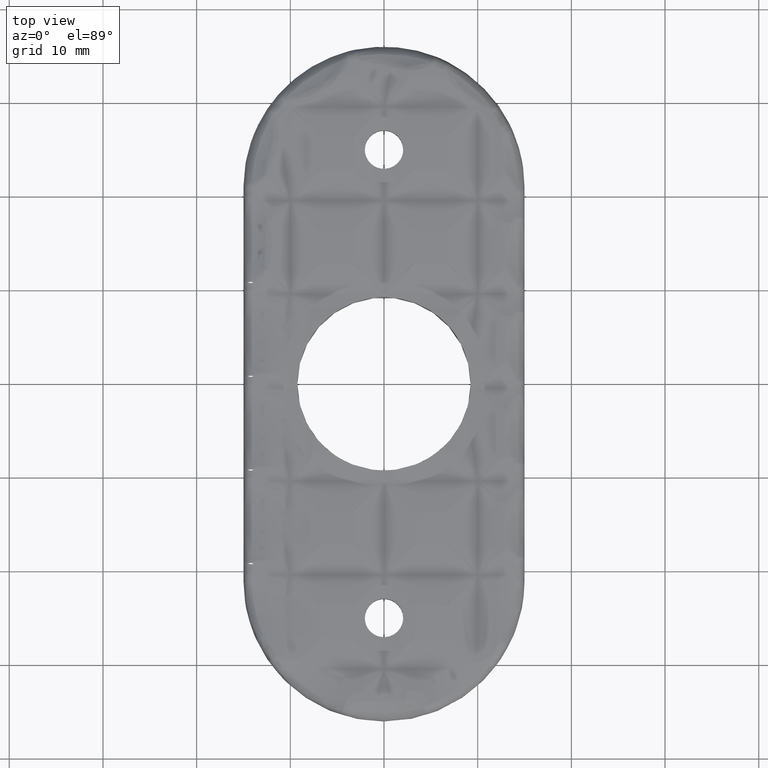
[diagram: clean part render]
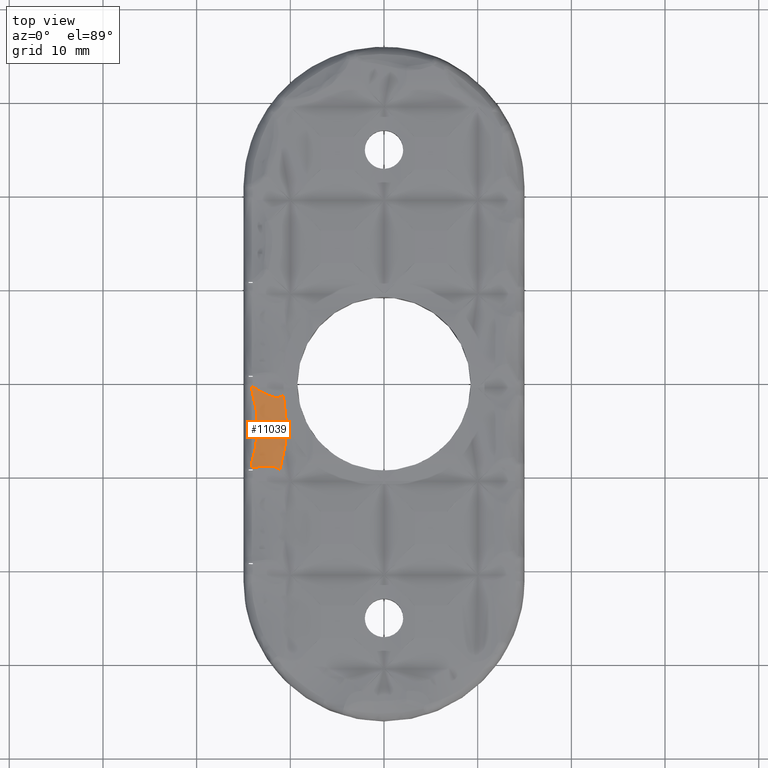
[diagram: same view with one face highlighted and labeled with its STEP entity id]
A machine part, top view. The second image highlights one B-rep face of the part: STEP entity #11039.
In plain terms, the highlighted face is a freeform B-spline surface patch.
Its self-contained STEP definition (entity closure, byte-faithful):
#81 = CARTESIAN_POINT ( 'NONE',  ( -12.66827399355456900, -0.05533071880763334300, 3.480385656055541100 ) ) ;
#731 = CARTESIAN_POINT ( 'NONE',  ( -10.43101667249169900, -4.378355373627697700, 3.258035847555504000 ) ) ;
#1396 = CARTESIAN_POINT ( 'NONE',  ( -13.59059611231253900, -5.896650930910060300, 2.920175415793777200 ) ) ;
#1519 = B_SPLINE_CURVE_WITH_KNOTS ( 'NONE', 3,
 ( #14554, #27028, #20842, #8345 ),
 .UNSPECIFIED., .F., .F.,
 ( 4, 4 ),
 ( 0.0000000000000000000, 1.000000000000000000 ),
 .UNSPECIFIED. ) ;
#1535 = CARTESIAN_POINT ( 'NONE',  ( -11.84715504734033000, -11.04130083126988600, 3.398498752361853300 ) ) ;
#1723 = CARTESIAN_POINT ( 'NONE',  ( -13.04417683816769900, -9.909699897632089400, 3.592215643987439800 ) ) ;
#1734 = ORIENTED_EDGE ( 'NONE', *, *, #20210, .T. ) ;
#1742 = CARTESIAN_POINT ( 'NONE',  ( -11.14219500480416200, -1.412535005345283000, 3.290629829669987800 ) ) ;
#1800 = CARTESIAN_POINT ( 'NONE',  ( -13.88835697449567000, -7.589348808173491000, 3.054811542851195000 ) ) ;
#1833 = CARTESIAN_POINT ( 'NONE',  ( -12.42451285788366600, -1.203407385963064500, 3.267288569751256600 ) ) ;
#1842 = CARTESIAN_POINT ( 'NONE',  ( -13.80899501552927700, -8.918216513446994400, 3.297871665484650300 ) ) ;
#1897 = CARTESIAN_POINT ( 'NONE',  ( -10.51177364146502700, -6.141939044428357700, 3.261284029204140700 ) ) ;
#1922 = CARTESIAN_POINT ( 'NONE',  ( -13.28110449622653500, -0.7277802490535093500, 3.238573562045265100 ) ) ;
#1926 = CARTESIAN_POINT ( 'NONE',  ( -14.12127477382749800, -0.5488267976551071100, 3.171531770050946400 ) ) ;
#1935 = CARTESIAN_POINT ( 'NONE',  ( -12.61137007613703900, -8.773258131688875100, 3.338528992399070200 ) ) ;
#1982 = CARTESIAN_POINT ( 'NONE',  ( -12.00361099591897400, -4.396631761069095000, 3.316698269205067700 ) ) ;
#2009 = CARTESIAN_POINT ( 'NONE',  ( -14.09532383487331600, -0.2868833321879890600, 3.228351946618104800 ) ) ;
#2019 = CARTESIAN_POINT ( 'NONE',  ( -11.57301335210137900, -8.895841951451112500, 3.333647135796540300 ) ) ;
#2070 = CARTESIAN_POINT ( 'NONE',  ( -13.59088600944895700, -3.060660011852244500, 2.920298929563507800 ) ) ;
#2158 = CARTESIAN_POINT ( 'NONE',  ( -11.50763481050356600, 1.344154061053188100, 3.346812893981491800 ) ) ;
#2834 = CARTESIAN_POINT ( 'NONE',  ( -10.45949719331293600, -3.494828433924103400, 3.259127644572992200 ) ) ;
#3396 = ORIENTED_EDGE ( 'NONE', *, *, #18174, .T. ) ;
#3484 = CARTESIAN_POINT ( 'NONE',  ( -13.73847089290606900, -6.903818449172896400, 2.984865109730826700 ) ) ;
#3812 = CARTESIAN_POINT ( 'NONE',  ( -11.63319821652868300, -10.60817913082667700, 3.363873608087538900 ) ) ;
#3836 = CARTESIAN_POINT ( 'NONE',  ( -11.30670225595533100, -1.446097184525246600, 3.293052254644865100 ) ) ;
#3898 = CARTESIAN_POINT ( 'NONE',  ( -12.39944851465289200, -7.924772219179193800, 3.409473423953571100 ) ) ;
#3931 = CARTESIAN_POINT ( 'NONE',  ( -12.47089807838952400, -1.181496734003115500, 3.265487877662298200 ) ) ;
#3943 = CARTESIAN_POINT ( 'NONE',  ( -13.55641455563737300, -8.880818818913171600, 3.308071820120684700 ) ) ;
#3989 = CARTESIAN_POINT ( 'NONE',  ( -14.12127477382749800, -0.5488267976551071100, 3.171531770050946400 ) ) ;
#3993 = CARTESIAN_POINT ( 'NONE',  ( -13.56409166697579100, -5.585167202638981400, 2.909016898504428900 ) ) ;
#4021 = CARTESIAN_POINT ( 'NONE',  ( -13.40815032469858400, -0.6519234106084197400, 3.235819419604557500 ) ) ;
#4026 = CARTESIAN_POINT ( 'NONE',  ( -12.56687686355376800, -8.771279461338418000, 3.339422368149583200 ) ) ;
#4070 = CARTESIAN_POINT ( 'NONE',  ( -10.43549560113942600, -4.081348092560012300, 3.258198029076178500 ) ) ;
#4112 = CARTESIAN_POINT ( 'NONE',  ( -11.48501458073668500, -8.931403818695208900, 3.329789430576193700 ) ) ;
#4170 = CARTESIAN_POINT ( 'NONE',  ( -12.16341554512530900, -2.241416818851386300, 3.352130903124080700 ) ) ;
#4258 = CARTESIAN_POINT ( 'NONE',  ( -14.09643494446208600, -0.6138798751951002300, 3.157733382538572700 ) ) ;
#4827 = CARTESIAN_POINT ( 'NONE',  ( -11.05808497606055200, -8.992679846532704200, 3.298484344969830700 ) ) ;
#4917 = CARTESIAN_POINT ( 'NONE',  ( -10.55927620057999100, -2.340376856638983300, 3.263409684702112100 ) ) ;
#5407 = EDGE_CURVE ( 'NONE', #8440, #19481, #25000, .T. ) ;
#5474 = CARTESIAN_POINT ( 'NONE',  ( -14.12127477382749800, -0.5488267976551071100, 3.171531770050946400 ) ) ;
#5571 = CARTESIAN_POINT ( 'NONE',  ( -13.95155498063090600, -7.849648285385117500, 3.085107339596460100 ) ) ;
#5602 = FACE_OUTER_BOUND ( 'NONE', #8355, .T. ) ;
#5883 = CARTESIAN_POINT ( 'NONE',  ( -14.15920025275746100, -8.551054568405902500, 3.190510178194099200 ) ) ;
#5913 = CARTESIAN_POINT ( 'NONE',  ( -11.47875417532672600, -1.453633938217158400, 3.292996085648730400 ) ) ;
#5970 = CARTESIAN_POINT ( 'NONE',  ( -10.88957950123150600, -8.372775747831191500, 3.284107355439180000 ) ) ;
#5995 = CARTESIAN_POINT ( 'NONE',  ( -12.61153442497656300, -1.113544706974408000, 3.260026275772789800 ) ) ;
#6006 = CARTESIAN_POINT ( 'NONE',  ( -13.41705148409592100, -8.860377171889146200, 3.313482667464561000 ) ) ;
#6060 = CARTESIAN_POINT ( 'NONE',  ( -12.04529104365839100, -5.617458126710706900, 3.325786844333916000 ) ) ;
#6090 = CARTESIAN_POINT ( 'NONE',  ( -13.55873020743759500, -0.5641866787590681400, 3.233285244806615800 ) ) ;
#6103 = CARTESIAN_POINT ( 'NONE',  ( -12.28558990708532800, -8.767175007124809100, 3.343680191215864500 ) ) ;
#6154 = CARTESIAN_POINT ( 'NONE',  ( -13.52082440927189900, -4.216788736179052100, 2.891016134130342000 ) ) ;
#6188 = CARTESIAN_POINT ( 'NONE',  ( -11.30995609188722600, -9.016152217208427200, 3.320467434079125800 ) ) ;
#6239 = CARTESIAN_POINT ( 'NONE',  ( -10.86493635287226500, -0.6647835017488817900, 3.281854033910026400 ) ) ;
#6317 = CARTESIAN_POINT ( 'NONE',  ( -12.94929926430793500, 0.7096654270318758500, 3.562907734668149500 ) ) ;
#6911 = CARTESIAN_POINT ( 'NONE',  ( -10.88958192267905300, -8.372774635969220100, 3.284107542422229000 ) ) ;
#6991 = CARTESIAN_POINT ( 'NONE',  ( -10.75434718435976400, -1.214862926047708600, 3.274633317936659300 ) ) ;
#7581 = CARTESIAN_POINT ( 'NONE',  ( -13.95077716263696700, -1.122384044473983400, 3.084740003237362400 ) ) ;
#7676 = CARTESIAN_POINT ( 'NONE',  ( -14.12127809581429400, -8.420231718024595600, 3.171527060845540800 ) ) ;
#7988 = CARTESIAN_POINT ( 'NONE',  ( -12.75344707017536900, -9.170154580391006500, 3.504347110889078900 ) ) ;
#8016 = CARTESIAN_POINT ( 'NONE',  ( -11.57709720883687700, -1.448604999658230600, 3.292063763919462100 ) ) ;
#8077 = CARTESIAN_POINT ( 'NONE',  ( -13.77290830986896400, -7.066600916766971900, 3.000712335627233600 ) ) ;
#8105 = CARTESIAN_POINT ( 'NONE',  ( -12.93930932063609300, -0.9300376311804768900, 3.248263228968507400 ) ) ;
#8120 = CARTESIAN_POINT ( 'NONE',  ( -13.34066960517365000, -8.849477384347414600, 3.316357956337535400 ) ) ;
#8173 = CARTESIAN_POINT ( 'NONE',  ( -10.44875268274131800, -5.268240942267358800, 3.258696660578339600 ) ) ;
#8200 = CARTESIAN_POINT ( 'NONE',  ( -13.65298004308683000, -0.5110072874955390300, 3.232020801832207200 ) ) ;
#8202 = CARTESIAN_POINT ( 'NONE',  ( -14.10407492220520500, -0.3744394639063676800, 3.209389299120573500 ) ) ;
#8207 = CARTESIAN_POINT ( 'NONE',  ( -12.00125349685922400, -8.791519911249814400, 3.343542085018285100 ) ) ;
#8261 = CARTESIAN_POINT ( 'NONE',  ( -12.02527892522794200, -3.665183525772949500, 3.321404032281541700 ) ) ;
#8297 = CARTESIAN_POINT ( 'NONE',  ( -11.11274259044614300, -9.174216309621622000, 3.303668035484686300 ) ) ;
#8344 = CARTESIAN_POINT ( 'NONE',  ( -13.75983921469394700, -1.947947649060365800, 2.994496792763678500 ) ) ;
#8345 = CARTESIAN_POINT ( 'NONE',  ( -14.12127809581429400, -8.420231718024595600, 3.171527060845540800 ) ) ;
#8355 = EDGE_LOOP ( 'NONE', ( #1734, #13116, #12721, #23629, #3396, #10002 ) ) ;
#8440 = VERTEX_POINT ( 'NONE', #3989 ) ;
#9007 = CARTESIAN_POINT ( 'NONE',  ( -10.61100226224403200, -6.998561347586226100, 3.265965102536647600 ) ) ;
#9098 = CARTESIAN_POINT ( 'NONE',  ( -10.75634458533844800, -1.204953935938295000, 3.274764121688000800 ) ) ;
#9684 = CARTESIAN_POINT ( 'NONE',  ( -13.73875001065879600, -2.063289373852955000, 2.985000787570477200 ) ) ;
#9779 = EDGE_CURVE ( 'NONE', #20045, #12057, #1519, .T. ) ;
#9923 = B_SPLINE_CURVE_WITH_KNOTS ( 'NONE', 3,
 ( #12206, #10144, #1842, #16398, #3943, #18523, #6006, #20603, #8120, #22727, #10218, #24838, #12303, #26889, #14416, #1935, #16488, #4026, #18611, #6103, #20690, #8207, #22818, #10306, #24920, #12398, #26975, #14498, #2019, #16583, #4112, #18703, #6188, #20786, #8297 ),
 .UNSPECIFIED., .F., .F.,
 ( 4, 2, 2, 1, 2, 2, 2, 1, 1, 2, 2, 2, 1, 1, 2, 2, 2, 2, 2, 4 ),
 ( 0.0000000000000000000, 0.1250000000000021400, 0.1875000000000039400, 0.2187500000000048300, 0.2343750000000043900, 0.2500000000000039400, 0.3750000000000030000, 0.4375000000000025500, 0.4687500000000022800, 0.4843750000000021600, 0.5000000000000020000, 0.6249999999999992200, 0.6874999999999986700, 0.7187499999999984500, 0.7343749999999990000, 0.7499999999999995600, 0.8125000000000003300, 0.8437500000000004400, 0.8750000000000005600, 1.000000000000000000 ),
 .UNSPECIFIED. ) ;
#10002 = ORIENTED_EDGE ( 'NONE', *, *, #9779, .F. ) ;
#10020 = B_SPLINE_CURVE_WITH_KNOTS ( 'NONE', 3,
 ( #5474, #17980, #7581, #22200, #9684, #24282, #11767, #26376, #13887, #1396, #15956, #3484, #18068, #5571, #20166, #7676 ),
 .UNSPECIFIED., .F., .F.,
 ( 4, 2, 2, 2, 2, 2, 2, 4 ),
 ( 0.0000000000000000000, 0.1250000000000000600, 0.2500000000000001100, 0.5000000000000002200, 0.6250000000000001100, 0.7500000000000001100, 0.8750000000000000000, 1.000000000000000000 ),
 .UNSPECIFIED. ) ;
#10029 = CARTESIAN_POINT ( 'NONE',  ( -10.87466178414941000, -1.300234999442522400, 3.281766979996168800 ) ) ;
#10103 = CARTESIAN_POINT ( 'NONE',  ( -11.18535962916516400, -9.412007665981164500, 3.310601348441304800 ) ) ;
#10132 = CARTESIAN_POINT ( 'NONE',  ( -11.75885214012542900, -1.431075084083456500, 3.289535029025109700 ) ) ;
#10144 = CARTESIAN_POINT ( 'NONE',  ( -13.93785040815249900, -8.936925284258045100, 3.292477184045518700 ) ) ;
#10185 = CARTESIAN_POINT ( 'NONE',  ( -12.21141655934000900, -7.027257542981720600, 3.363269689454102500 ) ) ;
#10210 = CARTESIAN_POINT ( 'NONE',  ( -13.11127211200880500, -0.8289352730284235100, 3.242980746463037800 ) ) ;
#10218 = CARTESIAN_POINT ( 'NONE',  ( -13.17969700706216200, -8.827012380989476300, 3.322305020063162800 ) ) ;
#10264 = CARTESIAN_POINT ( 'NONE',  ( -13.52837188819665200, -5.004969726717396500, 2.894130872656178100 ) ) ;
#10296 = CARTESIAN_POINT ( 'NONE',  ( -13.67599066250540200, -0.4982256367574354200, 3.231742667671473300 ) ) ;
#10306 = CARTESIAN_POINT ( 'NONE',  ( -11.84920146538387800, -8.818433275550681600, 3.341421860783037300 ) ) ;
#10362 = CARTESIAN_POINT ( 'NONE',  ( -10.47898174442749700, -3.204255144193248700, 3.259894215094604900 ) ) ;
#10453 = CARTESIAN_POINT ( 'NONE',  ( -12.43275277202257300, -0.8855837819575814700, 3.417447912247262300 ) ) ;
#11039 = ADVANCED_FACE ( 'NONE', ( #5602 ), #23844, .T. ) ;
#11104 = CARTESIAN_POINT ( 'NONE',  ( -10.48583701402359800, -5.853030468706462500, 3.260196637819485300 ) ) ;
#11767 = CARTESIAN_POINT ( 'NONE',  ( -13.51958920513194300, -3.768407724915508300, 2.890499514395505900 ) ) ;
#12057 = VERTEX_POINT ( 'NONE', #17900 ) ;
#12109 = CARTESIAN_POINT ( 'NONE',  ( -11.02832938111455300, -1.376259415103315600, 3.287766738106872900 ) ) ;
#12166 = CARTESIAN_POINT ( 'NONE',  ( -13.93021022232233900, -7.756724581130456800, 3.075001816704164600 ) ) ;
#12191 = CARTESIAN_POINT ( 'NONE',  ( -12.12090973995107200, -1.328915917379144900, 3.278642080578359200 ) ) ;
#12206 = CARTESIAN_POINT ( 'NONE',  ( -14.06797781313243200, -8.953913423045323200, 3.286946360147342100 ) ) ;
#12264 = CARTESIAN_POINT ( 'NONE',  ( -10.61099972380957500, -6.998562066183930100, 3.265964968061875400 ) ) ;
#12292 = CARTESIAN_POINT ( 'NONE',  ( -13.22575820303433100, -0.7608206874550785800, 3.239904979508023300 ) ) ;
#12303 = CARTESIAN_POINT ( 'NONE',  ( -12.86033041557785200, -8.791064057185472800, 3.332418480990843300 ) ) ;
#12355 = CARTESIAN_POINT ( 'NONE',  ( -12.00864983365734200, -4.887625107805775700, 3.317789529134637300 ) ) ;
#12385 = CARTESIAN_POINT ( 'NONE',  ( -13.68396946176553200, -0.4938117967271869500, 3.231648830669748400 ) ) ;
#12398 = CARTESIAN_POINT ( 'NONE',  ( -11.80536841165155200, -8.827822273375492300, 3.340577675027801300 ) ) ;
#12447 = CARTESIAN_POINT ( 'NONE',  ( -13.54553737235524700, -3.634336841717550600, 2.901255423321316600 ) ) ;
#12504 = EDGE_CURVE ( 'NONE', #19699, #19481, #14306, .T. ) ;
#12537 = CARTESIAN_POINT ( 'NONE',  ( -11.32358848874589100, 0.8675923672175301900, 3.324873435907699500 ) ) ;
#12721 = ORIENTED_EDGE ( 'NONE', *, *, #12504, .T. ) ;
#13116 = ORIENTED_EDGE ( 'NONE', *, *, #17482, .T. ) ;
#13195 = CARTESIAN_POINT ( 'NONE',  ( -10.43763682166099500, -4.971430362437093500, 3.258284698456706000 ) ) ;
#13887 = CARTESIAN_POINT ( 'NONE',  ( -13.53436659071839000, -5.200619109172770000, 2.896544140747940900 ) ) ;
#14224 = CARTESIAN_POINT ( 'NONE',  ( -11.12157490941000600, -1.406823062454402500, 3.290186508848509400 ) ) ;
#14294 = CARTESIAN_POINT ( 'NONE',  ( -12.50850507805770600, -8.353999621489055700, 3.437634615314576700 ) ) ;
#14306 = B_SPLINE_CURVE_WITH_KNOTS ( 'NONE', 3,
 ( #26540, #18243, #10029, #24640, #12109, #26709, #14224, #1742, #16308, #3836, #18406, #5913, #20510, #8016, #22625, #10132, #24734, #12191, #26795, #14321, #1833, #16389, #3931, #18511, #5995, #20593, #8105, #22716, #10210, #24826, #12292, #26879, #14410, #1922, #16476, #4021, #18603, #6090, #20677, #8200, #22805, #10296, #24911, #12385, #26964, #14487, #2009 ),
 .UNSPECIFIED., .F., .F.,
 ( 4, 2, 1, 2, 2, 2, 1, 2, 2, 2, 1, 1, 1, 2, 2, 2, 2, 1, 1, 2, 2, 2, 1, 1, 1, 1, 2, 2, 4 ),
 ( 0.0000000000000000000, 0.06249999999999701600, 0.09374999999999489300, 0.1093749999999938200, 0.1249999999999927600, 0.1874999999999912600, 0.2187499999999905400, 0.2343749999999901700, 0.2499999999999897900, 0.3749999999999898400, 0.4374999999999892300, 0.4687499999999895600, 0.4843749999999903400, 0.4921874999999908400, 0.4999999999999912300, 0.6249999999999994400, 0.6875000000000035500, 0.7187500000000056600, 0.7343750000000061100, 0.7421875000000064400, 0.7500000000000066600, 0.8125000000000111000, 0.8437500000000132100, 0.8593750000000143200, 0.8671875000000148800, 0.8710937500000151000, 0.8730468750000153200, 0.8750000000000154300, 1.000000000000000000 ),
 .UNSPECIFIED. ) ;
#14321 = CARTESIAN_POINT ( 'NONE',  ( -12.35971819694760000, -1.233043467927925900, 3.269795460590606800 ) ) ;
#14381 = CARTESIAN_POINT ( 'NONE',  ( -13.61988823321299300, -6.154025614722777400, 2.932669570868993600 ) ) ;
#14410 = CARTESIAN_POINT ( 'NONE',  ( -13.27038992980920000, -0.7341786100628205900, 3.238824335262104000 ) ) ;
#14416 = CARTESIAN_POINT ( 'NONE',  ( -12.65750273482163000, -8.775598990082105600, 3.337555825359099800 ) ) ;
#14462 = CARTESIAN_POINT ( 'NONE',  ( -10.43101406119913900, -4.378355343279760200, 3.258035750146905900 ) ) ;
#14473 = VERTEX_POINT ( 'NONE', #26968 ) ;
#14487 = CARTESIAN_POINT ( 'NONE',  ( -13.90655710363936500, -0.3709187202887752100, 3.229431297882376500 ) ) ;
#14498 = CARTESIAN_POINT ( 'NONE',  ( -11.66338418087202900, -8.864329228222914000, 3.336994710010472400 ) ) ;
#14553 = CARTESIAN_POINT ( 'NONE',  ( -12.10098317007183900, -2.709506042962912500, 3.338127140997367200 ) ) ;
#14554 = CARTESIAN_POINT ( 'NONE',  ( -14.06797781313243200, -8.953913423045323200, 3.286946360147342100 ) ) ;
#14650 = CARTESIAN_POINT ( 'NONE',  ( -14.00240187262156000, -0.9303414426102729600, 3.110169720660315800 ) ) ;
#15215 = CARTESIAN_POINT ( 'NONE',  ( -11.11274259044614300, -9.174216309621622000, 3.303668035484686300 ) ) ;
#15303 = CARTESIAN_POINT ( 'NONE',  ( -10.43549821064363000, -4.081348207783237900, 3.258198127436098700 ) ) ;
#15810 = CARTESIAN_POINT ( 'NONE',  ( -14.09532383487331600, -0.2868833321879890600, 3.228351946618104800 ) ) ;
#15956 = CARTESIAN_POINT ( 'NONE',  ( -13.63193643699950300, -6.237239959202628200, 2.937713720204617300 ) ) ;
#16279 = CARTESIAN_POINT ( 'NONE',  ( -14.26264442294520600, -8.838690742775613200, 3.246984982129765800 ) ) ;
#16308 = CARTESIAN_POINT ( 'NONE',  ( -11.23245745339267300, -1.435146285825757800, 3.292345256789245900 ) ) ;
#16363 = CARTESIAN_POINT ( 'NONE',  ( -10.95797487738988200, -8.641073965679414200, 3.289514683075131600 ) ) ;
#16389 = CARTESIAN_POINT ( 'NONE',  ( -12.45233672926949200, -1.190312404535086800, 3.266208607664399500 ) ) ;
#16398 = CARTESIAN_POINT ( 'NONE',  ( -13.61913497025725000, -8.890165736631024300, 3.305571075768642100 ) ) ;
#16448 = CARTESIAN_POINT ( 'NONE',  ( -12.06498323260740500, -5.856618411581688800, 3.330121258577074100 ) ) ;
#16476 = CARTESIAN_POINT ( 'NONE',  ( -13.34606594030308500, -0.6889850192451296700, 3.237078791431395000 ) ) ;
#16479 = CARTESIAN_POINT ( 'NONE',  ( -14.11273421136001500, -0.4617490259433668600, 3.190425069797043500 ) ) ;
#16488 = CARTESIAN_POINT ( 'NONE',  ( -12.58069677866198600, -8.771852284455265500, 3.339151656893420700 ) ) ;
#16544 = CARTESIAN_POINT ( 'NONE',  ( -13.51826838244321900, -4.414022605375895300, 2.889965525586605000 ) ) ;
#16583 = CARTESIAN_POINT ( 'NONE',  ( -11.54335856473687500, -8.907141834828182800, 3.332428921910906400 ) ) ;
#16634 = CARTESIAN_POINT ( 'NONE',  ( -10.64175969911582000, -1.774855371289662200, 3.267282125121340200 ) ) ;
#16721 = CARTESIAN_POINT ( 'NONE',  ( -12.80186294635217500, 0.3387220624373520300, 3.518017786715281800 ) ) ;
#17306 = CARTESIAN_POINT ( 'NONE',  ( -11.08505469518314800, -9.083908946529346600, 3.300990812963870500 ) ) ;
#17388 = CARTESIAN_POINT ( 'NONE',  ( -10.47898433648760800, -3.204255510106713200, 3.259894322588010600 ) ) ;
#17482 = EDGE_CURVE ( 'NONE', #14473, #19699, #20204, .T. ) ;
#17900 = CARTESIAN_POINT ( 'NONE',  ( -14.12127809581429400, -8.420231718024595600, 3.171527060845540800 ) ) ;
#17980 = CARTESIAN_POINT ( 'NONE',  ( -14.03271340566913800, -0.8282520346416274400, 3.125367287881950500 ) ) ;
#18068 = CARTESIAN_POINT ( 'NONE',  ( -13.80427671356841700, -7.231687531820041300, 3.014775230289502800 ) ) ;
#18174 = EDGE_CURVE ( 'NONE', #8440, #12057, #10020, .T. ) ;
#18243 = CARTESIAN_POINT ( 'NONE',  ( -10.81267126198105200, -1.256924489851096700, 3.278456595185102400 ) ) ;
#18386 = CARTESIAN_POINT ( 'NONE',  ( -12.89220939445857200, -9.551660432792553800, 3.544598989014521100 ) ) ;
#18406 = CARTESIAN_POINT ( 'NONE',  ( -11.42092740001836000, -1.452745575920415300, 3.293171587339776000 ) ) ;
#18475 = CARTESIAN_POINT ( 'NONE',  ( -13.80979069224710000, -7.244769952969791800, 3.017704978314620100 ) ) ;
#18511 = CARTESIAN_POINT ( 'NONE',  ( -12.48184899410429500, -1.176241499841634400, 3.265062507133054100 ) ) ;
#18523 = CARTESIAN_POINT ( 'NONE',  ( -13.46333861014300500, -8.867134942492747000, 3.311699606430211300 ) ) ;
#18573 = CARTESIAN_POINT ( 'NONE',  ( -10.48583442473890100, -5.853030859845826900, 3.260196528915228600 ) ) ;
#18603 = CARTESIAN_POINT ( 'NONE',  ( -13.50750079135302600, -0.5938447987405721700, 3.234101297677677100 ) ) ;
#18611 = CARTESIAN_POINT ( 'NONE',  ( -12.41630888695085000, -8.765901125871483400, 3.342233557544649300 ) ) ;
#18667 = CARTESIAN_POINT ( 'NONE',  ( -12.00702503873423200, -4.150739316507801000, 3.317433820588013800 ) ) ;
#18703 = CARTESIAN_POINT ( 'NONE',  ( -11.45767773908049300, -8.943702664990786000, 3.328441151309831500 ) ) ;
#18750 = CARTESIAN_POINT ( 'NONE',  ( -13.63727966068311700, -2.685114062976873100, 2.939970348975778700 ) ) ;
#18854 = CARTESIAN_POINT ( 'NONE',  ( -11.71398546596163500, 1.792868660096975000, 3.377743331295894000 ) ) ;
#19092 = CARTESIAN_POINT ( 'NONE',  ( -14.06797781313243200, -8.953913423045323200, 3.286946360147342100 ) ) ;
#19396 = CARTESIAN_POINT ( 'NONE',  ( -10.95797726945134400, -8.641072777008503200, 3.289514882140973200 ) ) ;
#19481 = VERTEX_POINT ( 'NONE', #15810 ) ;
#19496 = CARTESIAN_POINT ( 'NONE',  ( -10.64176222513079900, -1.774856145801979800, 3.267282265973658000 ) ) ;
#19699 = VERTEX_POINT ( 'NONE', #23593 ) ;
#20045 = VERTEX_POINT ( 'NONE', #19092 ) ;
#20166 = CARTESIAN_POINT ( 'NONE',  ( -14.03331620222153100, -8.142656835112912700, 3.125662698468977900 ) ) ;
#20204 =( BOUNDED_CURVE ( )  B_SPLINE_CURVE ( 3, ( #15215, #17306, #4827, #19396, #6911, #21503, #9007, #23613, #11104, #25710, #13195, #731, #15303, #2834, #17388, #4917, #19496, #6991, #21581, #9098 ),
 .UNSPECIFIED., .F., .T. ) 
 B_SPLINE_CURVE_WITH_KNOTS ( ( 4, 2, 2, 2, 2, 2, 2, 2, 2, 4 ),
 ( 0.0000000000000000000, 0.03789907707422411600, 0.1445874209068615000, 0.3579641085721362900, 0.4646524524047741000, 0.5713407962374110700, 0.6780291400700480000, 0.7847174839026858100, 0.9980941715679614300, 1.000000000000000000 ),
 .UNSPECIFIED. ) 
 CURVE ( )  GEOMETRIC_REPRESENTATION_ITEM ( )  RATIONAL_B_SPLINE_CURVE ( ( 0.9999999782882169600, 0.9999999783321190700, 0.9999999783758901600, 0.9999999785417911200, 0.9999999786625233300, 0.9999999790017203300, 0.9999999791961797800, 0.9999999794060453500, 0.9999999794624574400, 0.9999999795437386500, 0.9999999795685442500, 0.9999999795832739100, 0.9999999795732310600, 0.9999999795201512900, 0.9999999794771904400, 0.9999999793042675400, 0.9999999791297808900, 0.9999999789143423400, 0.9999999789124325300, 0.9999999789105201700 ) ) 
 REPRESENTATION_ITEM ( '' )  );
#20210 = EDGE_CURVE ( 'NONE', #20045, #14473, #9923, .T. ) ;
#20480 = CARTESIAN_POINT ( 'NONE',  ( -11.44089057449351400, -10.14674639797230200, 3.338851244391988900 ) ) ;
#20510 = CARTESIAN_POINT ( 'NONE',  ( -11.53762277035676600, -1.451064087535497600, 3.292480972402597000 ) ) ;
#20569 = CARTESIAN_POINT ( 'NONE',  ( -12.34865525718182000, -7.702808369409347700, 3.396776719491716900 ) ) ;
#20593 = CARTESIAN_POINT ( 'NONE',  ( -12.73936669723322400, -1.044173997886606000, 3.255129159982838700 ) ) ;
#20603 = CARTESIAN_POINT ( 'NONE',  ( -13.37116701428847100, -8.853807998150880800, 3.315214914202060400 ) ) ;
#20652 = CARTESIAN_POINT ( 'NONE',  ( -13.54940608328058000, -5.393311687494622800, 2.902881476174238500 ) ) ;
#20677 = CARTESIAN_POINT ( 'NONE',  ( -13.62113267556502200, -0.5288309658809472500, 3.232425419146775200 ) ) ;
#20690 = CARTESIAN_POINT ( 'NONE',  ( -12.09510130456115500, -8.781360569633548600, 3.343910580867879700 ) ) ;
#20743 = CARTESIAN_POINT ( 'NONE',  ( -10.45949459343152000, -3.494828151060262100, 3.259127541167336600 ) ) ;
#20786 = CARTESIAN_POINT ( 'NONE',  ( -11.20446670925255500, -9.087504102578288100, 3.312536164362235100 ) ) ;
#20840 = CARTESIAN_POINT ( 'NONE',  ( -12.33049606290947900, -1.322853918114755200, 3.392053729343882400 ) ) ;
#20842 = CARTESIAN_POINT ( 'NONE',  ( -14.10392154487020600, -8.597126464424478700, 3.209912265308997500 ) ) ;
#20929 = CARTESIAN_POINT ( 'NONE',  ( -14.19776056355709700, -0.3158923916864551100, 3.211922228519465500 ) ) ;
#21503 = CARTESIAN_POINT ( 'NONE',  ( -10.70555214834231500, -7.556245142673808400, 3.270891272085474400 ) ) ;
#21581 = CARTESIAN_POINT ( 'NONE',  ( -10.75534593266339900, -1.209907594245968500, 3.274698655184819200 ) ) ;
#22200 = CARTESIAN_POINT ( 'NONE',  ( -13.80389745534541000, -1.739069142083631300, 3.014616895120489500 ) ) ;
#22599 = CARTESIAN_POINT ( 'NONE',  ( -14.06237197783421600, -8.244643184468973400, 3.140426503493166900 ) ) ;
#22625 = CARTESIAN_POINT ( 'NONE',  ( -11.59917093864741100, -1.446783878720375900, 3.291786912753152300 ) ) ;
#22687 = CARTESIAN_POINT ( 'NONE',  ( -10.70554964873049800, -7.556246020749972200, 3.270891118745205900 ) ) ;
#22716 = CARTESIAN_POINT ( 'NONE',  ( -13.00731904671507500, -0.8903165952999228000, 3.246056956106584000 ) ) ;
#22727 = CARTESIAN_POINT ( 'NONE',  ( -13.32663879511373000, -8.847499869909020400, 3.316880323942466000 ) ) ;
#22778 = CARTESIAN_POINT ( 'NONE',  ( -12.01711552618692400, -5.133350331179619800, 3.319619332031139800 ) ) ;
#22805 = CARTESIAN_POINT ( 'NONE',  ( -13.66906362002870900, -0.5020643839566966100, 3.231825096353486700 ) ) ;
#22810 = CARTESIAN_POINT ( 'NONE',  ( -14.09532383487331600, -0.2868833321879890600, 3.228351946618104800 ) ) ;
#22818 = CARTESIAN_POINT ( 'NONE',  ( -11.89440570719050200, -8.809406060009330000, 3.342199290743953300 ) ) ;
#22872 = CARTESIAN_POINT ( 'NONE',  ( -13.53446775809938700, -3.827297916875962400, 2.896664440534988800 ) ) ;
#22959 = CARTESIAN_POINT ( 'NONE',  ( -11.00246041686154200, -0.1362230795358381800, 3.292407826922326500 ) ) ;
#23593 = CARTESIAN_POINT ( 'NONE',  ( -10.75634458533844800, -1.204953935938295000, 3.274764121688000800 ) ) ;
#23613 = CARTESIAN_POINT ( 'NONE',  ( -10.51177622028968800, -6.141938570704859900, 3.261284143495612100 ) ) ;
#23629 = ORIENTED_EDGE ( 'NONE', *, *, #5407, .F. ) ;
#23844 =( BOUNDED_SURFACE ( )  B_SPLINE_SURFACE ( 3, 2, ( 
 ( #1535, #1723, #16279 ),
 ( #3812, #18386, #5883 ),
 ( #20480, #7988, #22599 ),
 ( #10103, #24706, #12166 ),
 ( #26772, #14294, #1800 ),
 ( #16363, #3898, #18475 ),
 ( #5970, #20569, #8077 ),
 ( #22687, #10185, #24796 ),
 ( #12264, #26854, #14381 ),
 ( #1897, #16448, #3993 ),
 ( #18573, #6060, #20652 ),
 ( #8173, #22778, #10264 ),
 ( #24880, #12355, #26929 ),
 ( #14462, #1982, #16544 ),
 ( #4070, #18667, #6154 ),
 ( #20743, #8261, #22872 ),
 ( #10362, #24973, #12447 ),
 ( #27027, #14553, #2070 ),
 ( #16634, #4170, #18750 ),
 ( #6239, #20840, #8344 ),
 ( #22959, #10453, #25065 ),
 ( #12537, #81, #14650 ),
 ( #2158, #16721, #4258 ),
 ( #18854, #6317, #20929 ) ),
 .UNSPECIFIED., .F., .F., .T. ) 
 B_SPLINE_SURFACE_WITH_KNOTS ( ( 4, 2, 2, 2, 2, 2, 2, 2, 2, 2, 2, 4 ),
 ( 3, 3 ),
 ( 0.02529798602486957700, 0.02705041378836051100, 0.02792662767010597700, 0.02880284155185144200, 0.03055526931534237300, 0.03143148319708784200, 0.03230769707883330400, 0.03318391096057876600, 0.03406012484232423500, 0.03581255260581517300, 0.03756498036930610400, 0.03931740813279703500 ),
 ( 0.0000000000000000000, 1.000000000000000000 ),
 .UNSPECIFIED. ) 
 GEOMETRIC_REPRESENTATION_ITEM ( )  RATIONAL_B_SPLINE_SURFACE ( (
 ( 1.000000000000000000, 0.9865228880414195200, 1.000000000000000000),
 ( 1.000000000000000000, 0.9866499858530388700, 1.000000000000000000),
 ( 1.000000000000000000, 0.9867939617033617500, 1.000000000000000000),
 ( 1.000000000000000000, 0.9870143637708394000, 1.000000000000000000),
 ( 1.000000000000000000, 0.9870885360961201300, 1.000000000000000000),
 ( 1.000000000000000000, 0.9872341892544951300, 1.000000000000000000),
 ( 1.000000000000000000, 0.9873060146117359500, 1.000000000000000000),
 ( 1.000000000000000000, 0.9875078080819924600, 1.000000000000000000),
 ( 1.000000000000000000, 0.9876234949099214100, 1.000000000000000000),
 ( 1.000000000000000000, 0.9877483470634491600, 1.000000000000000000),
 ( 1.000000000000000000, 0.9877819074032354600, 1.000000000000000000),
 ( 1.000000000000000000, 0.9878302628868935700, 1.000000000000000000),
 ( 1.000000000000000000, 0.9878450201331054900, 1.000000000000000000),
 ( 1.000000000000000000, 0.9878537830158122800, 1.000000000000000000),
 ( 1.000000000000000000, 0.9878478084050862400, 1.000000000000000000),
 ( 1.000000000000000000, 0.9878162303633238900, 1.000000000000000000),
 ( 1.000000000000000000, 0.9877906723268919900, 1.000000000000000000),
 ( 1.000000000000000000, 0.9876877979019249600, 1.000000000000000000),
 ( 1.000000000000000000, 0.9875839931266131600, 1.000000000000000000),
 ( 1.000000000000000000, 0.9873299272824754800, 1.000000000000000000),
 ( 1.000000000000000000, 0.9871838314582072100, 1.000000000000000000),
 ( 1.000000000000000000, 0.9868892815763871100, 1.000000000000000000),
 ( 1.000000000000000000, 0.9867404564638518900, 1.000000000000000000),
 ( 1.000000000000000000, 0.9866059135401023000, 1.000000000000000000) ) ) 
 REPRESENTATION_ITEM ( '' )  SURFACE ( )  );
#24282 = CARTESIAN_POINT ( 'NONE',  ( -13.57771037246366500, -3.071396380862626300, 2.913729483964276200 ) ) ;
#24640 = CARTESIAN_POINT ( 'NONE',  ( -10.97575507670715200, -1.352953729356799500, 3.285904851254279900 ) ) ;
#24706 = CARTESIAN_POINT ( 'NONE',  ( -12.56700121483477200, -8.562466541355991700, 3.453155305144330000 ) ) ;
#24734 = CARTESIAN_POINT ( 'NONE',  ( -11.90268699192010800, -1.398908858240771600, 3.285764694540793700 ) ) ;
#24796 = CARTESIAN_POINT ( 'NONE',  ( -13.67271060664676700, -6.524367294528109300, 2.955388505239527700 ) ) ;
#24826 = CARTESIAN_POINT ( 'NONE',  ( -13.16373132814129400, -0.7977991169429005100, 3.241500632341815200 ) ) ;
#24838 = CARTESIAN_POINT ( 'NONE',  ( -13.05064809008756500, -8.810555056943478300, 3.326736286240889100 ) ) ;
#24880 = CARTESIAN_POINT ( 'NONE',  ( -10.43763421301734300, -4.971430501594467100, 3.258284599650164800 ) ) ;
#24911 = CARTESIAN_POINT ( 'NONE',  ( -13.68061624377845600, -0.4956651871005717200, 3.231688039704752000 ) ) ;
#24920 = CARTESIAN_POINT ( 'NONE',  ( -11.81919834557150600, -8.824761570514700900, 3.340858013632786300 ) ) ;
#24973 = CARTESIAN_POINT ( 'NONE',  ( -12.04009606898751600, -3.424633040166916500, 3.324634238300466100 ) ) ;
#25000 = B_SPLINE_CURVE_WITH_KNOTS ( 'NONE', 3,
 ( #1926, #16479, #8202, #22810 ),
 .UNSPECIFIED., .F., .F.,
 ( 4, 4 ),
 ( 0.0000000000000000000, 1.000000000000000000 ),
 .UNSPECIFIED. ) ;
#25065 = CARTESIAN_POINT ( 'NONE',  ( -13.83421290679901500, -1.596946059287689000, 3.028616572859939000 ) ) ;
#25710 = CARTESIAN_POINT ( 'NONE',  ( -10.44875528694117700, -5.268240718287233700, 3.258696761737505100 ) ) ;
#26376 = CARTESIAN_POINT ( 'NONE',  ( -13.51955096938174900, -4.842598222111154100, 2.890486902518062200 ) ) ;
#26540 = CARTESIAN_POINT ( 'NONE',  ( -10.75634458533844800, -1.204953935938295000, 3.274764121688000800 ) ) ;
#26709 = CARTESIAN_POINT ( 'NONE',  ( -11.08388313477294000, -1.395169837452257900, 3.289269690801526200 ) ) ;
#26772 = CARTESIAN_POINT ( 'NONE',  ( -11.10571013709529500, -9.159962627463397000, 3.302751454853543900 ) ) ;
#26795 = CARTESIAN_POINT ( 'NONE',  ( -12.23064472857866200, -1.288486379464032700, 3.274717049879425800 ) ) ;
#26854 = CARTESIAN_POINT ( 'NONE',  ( -12.14007582551897200, -6.565700551038650800, 3.346968711069554700 ) ) ;
#26879 = CARTESIAN_POINT ( 'NONE',  ( -13.25251437756206800, -0.7448506039518226800, 3.239252241716069000 ) ) ;
#26889 = CARTESIAN_POINT ( 'NONE',  ( -12.76598258154957200, -8.782617861525594100, 3.335018929991846500 ) ) ;
#26929 = CARTESIAN_POINT ( 'NONE',  ( -13.52203746072044100, -4.807866553342711000, 2.891520840441964800 ) ) ;
#26964 = CARTESIAN_POINT ( 'NONE',  ( -13.76740881573062400, -0.4477297839867918100, 3.230678346803017100 ) ) ;
#26968 = CARTESIAN_POINT ( 'NONE',  ( -11.11274259044614300, -9.174216309621622000, 3.303668035484686300 ) ) ;
#26975 = CARTESIAN_POINT ( 'NONE',  ( -11.72550645087925700, -8.846505114527548800, 3.338816748428699900 ) ) ;
#27027 = CARTESIAN_POINT ( 'NONE',  ( -10.55927364100602300, -2.340376243803036000, 3.263409560654983600 ) ) ;
#27028 = CARTESIAN_POINT ( 'NONE',  ( -14.08608896316365000, -8.774974482290714300, 3.248584083875685200 ) ) ;